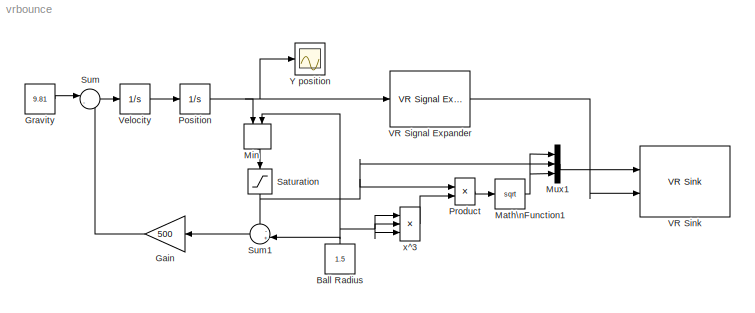
MODEL vrbounce
KIND model
BLOCK [Constant] Ball Radius
  Value = 1.5
BLOCK [Gain] Gain
  Gain = 500
BLOCK [Constant] Gravity
  Value = 9.81
BLOCK [Math] Math\nFunction1
  Operator = sqrt
  Ports = [1, 1]
BLOCK [MinMax] Min
  Function = min
  Inputs = 2
  Ports = [2, 1]
  ZeroCross = off
BLOCK [Mux] Mux1
  DisplayOption = bar
  Inputs = 3
  Ports = [3, 1]
BLOCK [Integrator] Position
  InitialCondition = 20
  LowerSaturationLimit = -Inf
  Ports = [1, 1]
  UpperSaturationLimit = Inf
  ZeroCross = off
BLOCK [Product] Product
  Inputs = /*
  Ports = [2, 1]
  RndMeth = Floor
BLOCK [Saturate] Saturation
  LowerLimit = 0
  UpperLimit = Inf
  ZeroCross = off
BLOCK [Sum] Sum
  IconShape = round
  Inputs = |-+
  Ports = [2, 1]
BLOCK [Sum] Sum1
  IconShape = round
  Inputs = -+|
  Ports = [2, 1]
BLOCK [Reference] VR Signal Expander  REF=vrlib/VR Signal Expander
  Ports = [1, 1]
  ShowPortLabels = on
  SourceBlock = vrlib/VR Signal Expander
  SourceType = VR Signal Expander
  outidx = 2
  outwidth = 3
BLOCK [Reference] VR Sink  REF=vrlib/VR Sink
  AutoView = on
  FieldsWritten = Ball.scale.3.1.double#Ball.translation.3.1.double
  Ports = [2]
  RemoteChange = off
  RemoteView = off
  SampleTime = 0.02
  SourceBlock = vrlib/VR Sink
  SourceType = Virtual Reality Sink
  ViewEnable = on
  WorldFileName = vrbounce.wrl
BLOCK [Integrator] Velocity
  LowerSaturationLimit = -Inf
  Ports = [1, 1]
  UpperSaturationLimit = Inf
  ZeroCross = off
BLOCK [Scope] Y position
  DataFormat = StructureWithTime
  ExtModeLoggingTrig = on
  NumInputPorts = 1
  Ports = [1]
  TimeRange = 10
  YMax = 20
  YMin = 0
BLOCK [Product] x^3
  Inputs = 3
  Ports = [3, 1]
  RndMeth = Floor
NET Ball Radius:1 -> Min:2, Sum1:2, x^3:1, x^3:2, x^3:3
LINE Gain:1 -> Sum:2
LINE Gravity:1 -> Sum:1
NET Math\nFunction1:1 -> Mux1:1, Mux1:3
LINE Min:1 -> Saturation:1
LINE Mux1:1 -> VR Sink:1
NET Position:1 -> Min:1, VR Signal Expander:1, Y position:1
LINE Product:1 -> Math\nFunction1:1
NET Saturation:1 -> Mux1:2, Product:1, Sum1:1
LINE Sum1:1 -> Gain:1
LINE Sum:1 -> Velocity:1
LINE VR Signal Expander:1 -> VR Sink:2
LINE Velocity:1 -> Position:1
LINE x^3:1 -> Product:2
note: NET lines group one-source signal fan-out (src -> all destinations, sorted); 1:1 wires keep LINE
